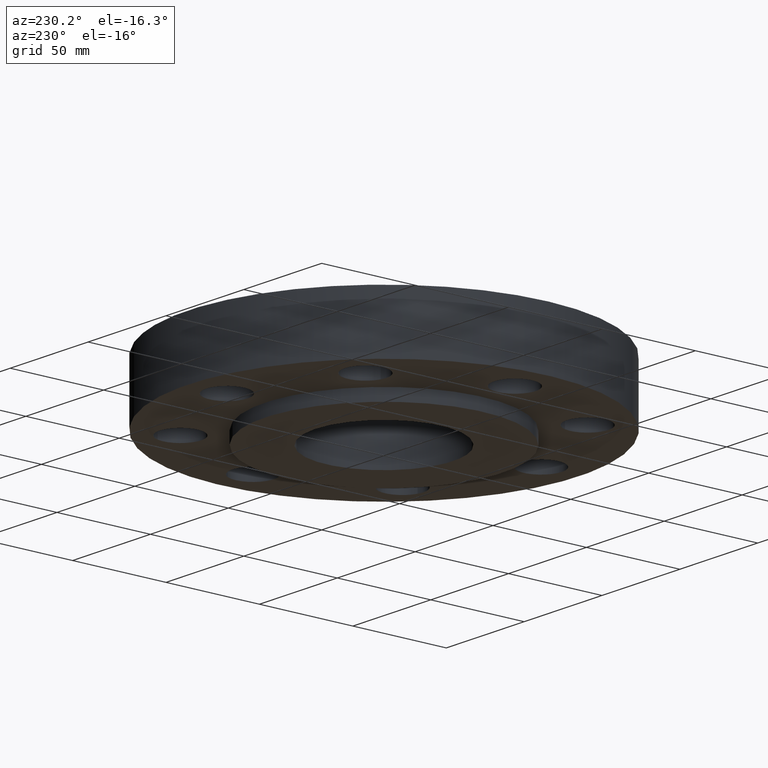
[diagram: clean part render]
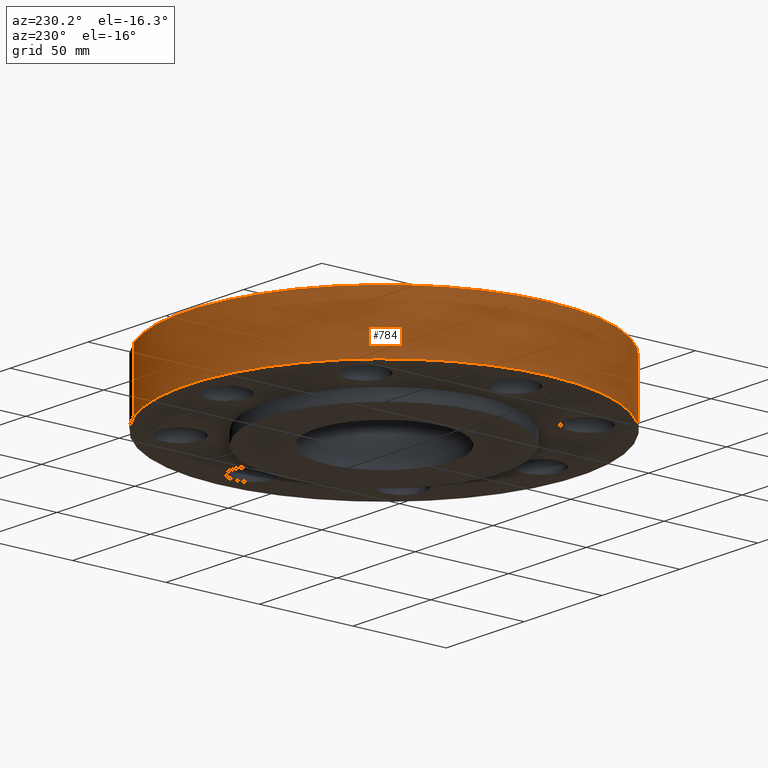
[diagram: same view with one face highlighted and labeled with its STEP entity id]
A machine part, auxiliary view. The second image highlights one B-rep face of the part: STEP entity #784.
In plain terms, the highlighted cylindrical surface (partial cylindrical patch) has radius 104.775 mm, axis along (0, 0, -1).
Its self-contained STEP definition (entity closure, byte-faithful):
#508=AXIS2_PLACEMENT_3D('Circle Axis2P3D',#506,#507,$) ;
#745=AXIS2_PLACEMENT_3D('Cylinder Axis2P3D',#742,#743,#744) ;
#506=CARTESIAN_POINT('Axis2P3D Location',(1.1189649382E-015,1.00007491352E-011,0.)) ;
#510=CARTESIAN_POINT('Vertex',(-1.97763034678,-3.62002806781,0.)) ;
#512=CARTESIAN_POINT('Vertex',(1.97763034678,3.62002806783,0.)) ;
#742=CARTESIAN_POINT('Axis2P3D Location',(0.,0.,0.780000000003)) ;
#747=CARTESIAN_POINT('Line Origine',(-1.97763034675,-3.62002806781,0.625000000006)) ;
#751=CARTESIAN_POINT('Vertex',(-1.97763034675,-3.62002806781,1.25000000004)) ;
#755=CARTESIAN_POINT('Control Point',(-1.97763034675,-3.62002806781,1.25000000001)) ;
#756=CARTESIAN_POINT('Control Point',(-2.54626302594,-3.30938261937,1.25000000001)) ;
#757=CARTESIAN_POINT('Control Point',(-3.05390061395,-2.88708640546,1.25000000001)) ;
#758=CARTESIAN_POINT('Control Point',(-3.47121412711,-2.36901864835,1.25000000001)) ;
#759=CARTESIAN_POINT('Control Point',(-4.08022127968,-1.19716953677,1.25000000002)) ;
#760=CARTESIAN_POINT('Control Point',(-4.20091220836,0.117955458021,1.25000000002)) ;
#761=CARTESIAN_POINT('Control Point',(-4.12966819923,0.779369897221,1.25000000002)) ;
#762=CARTESIAN_POINT('Control Point',(-3.73167883328,2.03862543792,1.25000000003)) ;
#763=CARTESIAN_POINT('Control Point',(-2.88708640546,3.05390061395,1.25000000003)) ;
#764=CARTESIAN_POINT('Control Point',(-2.36901864835,3.47121412711,1.25000000003)) ;
#765=CARTESIAN_POINT('Control Point',(-1.19716953677,4.08022127968,1.25000000003)) ;
#766=CARTESIAN_POINT('Control Point',(0.117955458021,4.20091220836,1.25000000004)) ;
#767=CARTESIAN_POINT('Control Point',(0.77936989722,4.12966819923,1.25000000004)) ;
#768=CARTESIAN_POINT('Control Point',(1.40899766757,3.93067351626,1.25000000004)) ;
#769=CARTESIAN_POINT('Control Point',(1.97763034675,3.62002806781,1.25000000004)) ;
#770=CARTESIAN_POINT('Vertex',(1.97763034678,3.62002806783,1.25000000001)) ;
#773=CARTESIAN_POINT('Line Origine',(1.97763034675,3.62002806781,0.625000000006)) ;
#507=DIRECTION('Axis2P3D Direction',(0.,0.,-0.0393700787402)) ;
#743=DIRECTION('Axis2P3D Direction',(0.,0.,-0.0393700787402)) ;
#744=DIRECTION('Axis2P3D XDirection',(-0.0188750212049,-0.0345504945626,0.)) ;
#748=DIRECTION('Vector Direction',(0.,0.,-0.0393700787402)) ;
#774=DIRECTION('Vector Direction',(0.,0.,-0.0393700787402)) ;
#749=VECTOR('Line Direction',#748,0.0393700787402) ;
#775=VECTOR('Line Direction',#774,0.0393700787402) ;
#779=ORIENTED_EDGE('',*,*,#514,.F.) ;
#780=ORIENTED_EDGE('',*,*,#753,.T.) ;
#781=ORIENTED_EDGE('',*,*,#772,.T.) ;
#782=ORIENTED_EDGE('',*,*,#777,.F.) ;
#784=ADVANCED_FACE('PartBody',(#783),#746,.T.) ;
#754=B_SPLINE_CURVE_WITH_KNOTS('',5,(#755,#756,#757,#758,#759,#760,#761,#762,#763,#764,#765,#766,#767,#768,#769),.UNSPECIFIED.,.F.,.U.,(6,3,3,3,6),(-164.580185141,-82.2900925704,0.,82.2900925704,164.580185141),.UNSPECIFIED.) ;
#509=CIRCLE('generated circle',#508,4.12500000004) ;
#746=CYLINDRICAL_SURFACE('generated cylinder',#745,4.12500000002) ;
#514=EDGE_CURVE('',#511,#513,#509,.T.) ;
#753=EDGE_CURVE('',#511,#752,#750,.F.) ;
#772=EDGE_CURVE('',#752,#771,#754,.T.) ;
#777=EDGE_CURVE('',#513,#771,#776,.F.) ;
#778=EDGE_LOOP('',(#779,#780,#781,#782)) ;
#783=FACE_OUTER_BOUND('',#778,.T.) ;
#750=LINE('Line',#747,#749) ;
#776=LINE('Line',#773,#775) ;
#511=VERTEX_POINT('',#510) ;
#513=VERTEX_POINT('',#512) ;
#752=VERTEX_POINT('',#751) ;
#771=VERTEX_POINT('',#770) ;